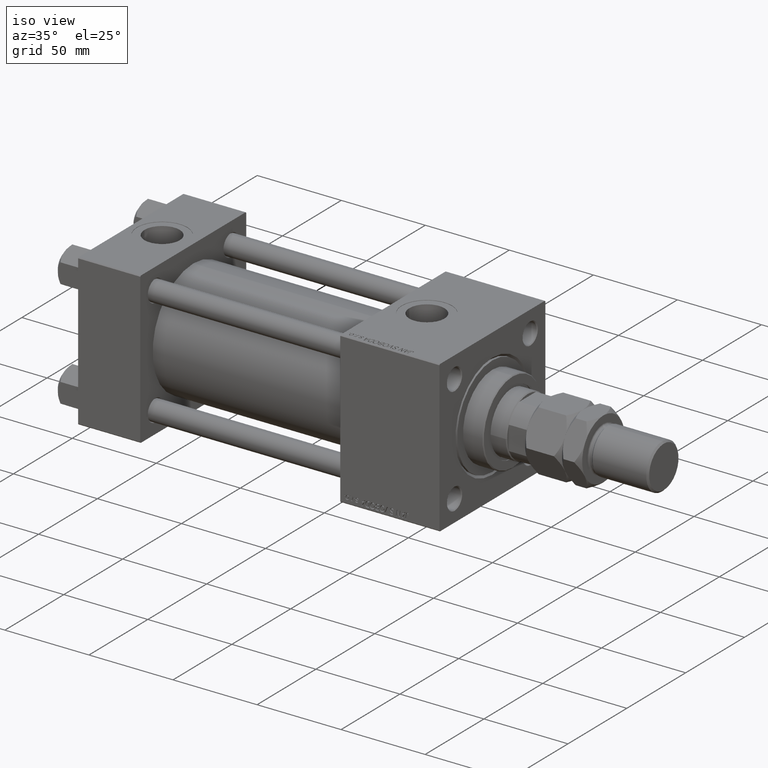
[diagram: clean part render]
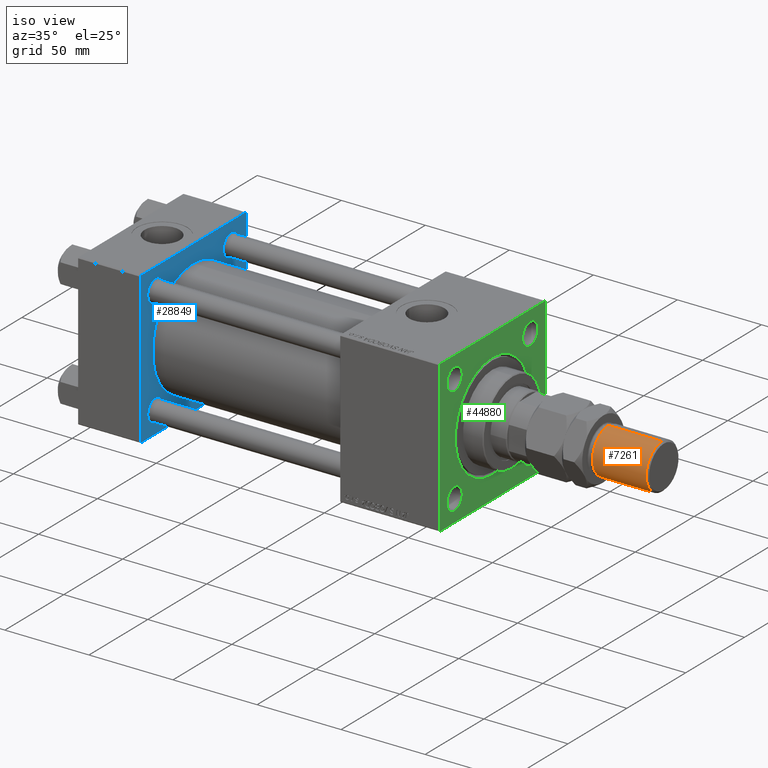
[diagram: same view with three faces highlighted in distinct colors, each labeled with its STEP entity id]
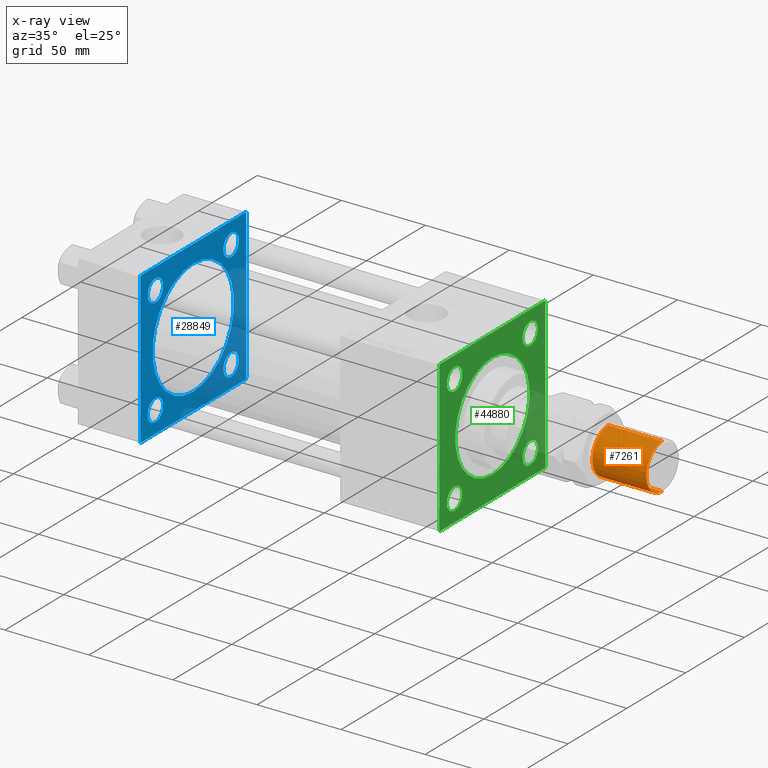
[diagram: x-ray of the same camera — body ghosted, the three highlighted faces saturated]
A machine part, iso view with three faces highlighted in distinct colors.
The next image is the same camera in x-ray (body ghosted, the three faces saturated) — at least one of them is partly hidden behind the body in this view.
Their STEP definitions:

[orange] entity #7261 — the highlighted cylindrical surface (edge-blend (fillet) strip) has radius 13.5 mm, axis along (-1, -0, 0).
#354 = ORIENTED_EDGE ( 'NONE', *, *, #14044, .T. ) ;
#2210 = CARTESIAN_POINT ( 'NONE',  ( -13.50000000000000000, 0.000000000000000000, 68.99999999999998579 ) ) ;
#4861 = ORIENTED_EDGE ( 'NONE', *, *, #17176, .T. ) ;
#5391 = VERTEX_POINT ( 'NONE', #46056 ) ;
#5723 = CARTESIAN_POINT ( 'NONE',  ( 13.50000000000000000, 1.653273178848926867E-15, 37.00000000000000000 ) ) ;
#7261 = ADVANCED_FACE ( 'NONE', ( #17191 ), #12234, .T. ) ;
#10795 = EDGE_LOOP ( 'NONE', ( #24001, #354, #4861, #20586 ) ) ;
#11623 = DIRECTION ( 'NONE',  ( -0.000000000000000000, -0.000000000000000000, 1.000000000000000000 ) ) ;
#12234 = CYLINDRICAL_SURFACE ( 'NONE', #17086, 13.50000000000000000 ) ;
#12435 = VERTEX_POINT ( 'NONE', #2210 ) ;
#13047 = CIRCLE ( 'NONE', #25605, 13.50000000000000000 ) ;
#14044 = EDGE_CURVE ( 'NONE', #5391, #12435, #13047, .T. ) ;
#16439 = CARTESIAN_POINT ( 'NONE',  ( -13.50000000000000000, 0.000000000000000000, 37.00000000000000000 ) ) ;
#17086 = AXIS2_PLACEMENT_3D ( 'NONE', #48667, #28246, #29028 ) ;
#17176 = EDGE_CURVE ( 'NONE', #12435, #17532, #21735, .T. ) ;
#17191 = FACE_OUTER_BOUND ( 'NONE', #10795, .T. ) ;
#17435 = DIRECTION ( 'NONE',  ( 0.000000000000000000, 0.000000000000000000, -1.000000000000000000 ) ) ;
#17532 = VERTEX_POINT ( 'NONE', #16439 ) ;
#20586 = ORIENTED_EDGE ( 'NONE', *, *, #25773, .T. ) ;
#20658 = VECTOR ( 'NONE', #34076, 1000.000000000000000 ) ;
#21735 = LINE ( 'NONE', #22261, #20658 ) ;
#22261 = CARTESIAN_POINT ( 'NONE',  ( -13.50000000000000000, 0.000000000000000000, 70.00000000000000000 ) ) ;
#22586 = VERTEX_POINT ( 'NONE', #5723 ) ;
#23694 = DIRECTION ( 'NONE',  ( -0.000000000000000000, -0.000000000000000000, -1.000000000000000000 ) ) ;
#23957 = LINE ( 'NONE', #51486, #30111 ) ;
#24001 = ORIENTED_EDGE ( 'NONE', *, *, #43259, .F. ) ;
#25425 = AXIS2_PLACEMENT_3D ( 'NONE', #36751, #11623, #48766 ) ;
#25605 = AXIS2_PLACEMENT_3D ( 'NONE', #29508, #17435, #37407 ) ;
#25773 = EDGE_CURVE ( 'NONE', #17532, #22586, #48012, .T. ) ;
#28246 = DIRECTION ( 'NONE',  ( -0.000000000000000000, -0.000000000000000000, -1.000000000000000000 ) ) ;
#29028 = DIRECTION ( 'NONE',  ( -1.000000000000000000, 0.000000000000000000, 0.000000000000000000 ) ) ;
#29508 = CARTESIAN_POINT ( 'NONE',  ( 0.000000000000000000, 0.000000000000000000, 68.99999999999998579 ) ) ;
#30111 = VECTOR ( 'NONE', #23694, 1000.000000000000000 ) ;
#34076 = DIRECTION ( 'NONE',  ( -0.000000000000000000, -0.000000000000000000, -1.000000000000000000 ) ) ;
#36751 = CARTESIAN_POINT ( 'NONE',  ( 0.000000000000000000, 0.000000000000000000, 37.00000000000000000 ) ) ;
#37407 = DIRECTION ( 'NONE',  ( 1.000000000000000000, 0.000000000000000000, 0.000000000000000000 ) ) ;
#43259 = EDGE_CURVE ( 'NONE', #5391, #22586, #23957, .T. ) ;
#46056 = CARTESIAN_POINT ( 'NONE',  ( 13.50000000000000000, 1.653273178848926867E-15, 68.99999999999998579 ) ) ;
#48012 = CIRCLE ( 'NONE', #25425, 13.50000000000000000 ) ;
#48667 = CARTESIAN_POINT ( 'NONE',  ( 0.000000000000000000, 0.000000000000000000, 70.00000000000000000 ) ) ;
#48766 = DIRECTION ( 'NONE',  ( 1.000000000000000000, 0.000000000000000000, 0.000000000000000000 ) ) ;
#51486 = CARTESIAN_POINT ( 'NONE',  ( 13.50000000000000000, 1.653273178848926867E-15, 70.00000000000000000 ) ) ;

[blue] entity #28849 — the highlighted planar face has unit normal (-1, 0, 0).
#675 = LINE ( 'NONE', #25331, #10606 ) ;
#876 = CARTESIAN_POINT ( 'NONE',  ( 37.00000000000000000, -32.14999999999997726, 32.15000000000001279 ) ) ;
#923 = DIRECTION ( 'NONE',  ( 0.000000000000000000, 0.000000000000000000, 1.000000000000000000 ) ) ;
#1118 = CARTESIAN_POINT ( 'NONE',  ( 37.00000000000000000, 44.99999999999998579, 45.00000000000001421 ) ) ;
#1129 = DIRECTION ( 'NONE',  ( 0.000000000000000000, 0.000000000000000000, 1.000000000000000000 ) ) ;
#1289 = ORIENTED_EDGE ( 'NONE', *, *, #51625, .T. ) ;
#1571 = EDGE_CURVE ( 'NONE', #32721, #4335, #3022, .T. ) ;
#1924 = DIRECTION ( 'NONE',  ( 0.000000000000000000, 0.000000000000000000, 1.000000000000000000 ) ) ;
#1953 = CARTESIAN_POINT ( 'NONE',  ( 37.00000000000000000, 44.99999999999998579, -44.99999999999998579 ) ) ;
#2116 = EDGE_CURVE ( 'NONE', #20625, #44077, #11850, .T. ) ;
#2742 = DIRECTION ( 'NONE',  ( -1.000000000000000000, 0.000000000000000000, -0.000000000000000000 ) ) ;
#3022 = LINE ( 'NONE', #34805, #3508 ) ;
#3041 = ORIENTED_EDGE ( 'NONE', *, *, #32937, .T. ) ;
#3312 = FACE_BOUND ( 'NONE', #16120, .T. ) ;
#3504 = EDGE_CURVE ( 'NONE', #7650, #7562, #21144, .T. ) ;
#3508 = VECTOR ( 'NONE', #50760, 1000.000000000000000 ) ;
#3544 = CARTESIAN_POINT ( 'NONE',  ( 37.00000000000000000, -44.49999999999995737, 45.00000000000000000 ) ) ;
#4335 = VERTEX_POINT ( 'NONE', #25866 ) ;
#4540 = VERTEX_POINT ( 'NONE', #13512 ) ;
#4720 = CIRCLE ( 'NONE', #17313, 6.499999999999977796 ) ;
#5167 = VERTEX_POINT ( 'NONE', #36146 ) ;
#5220 = CIRCLE ( 'NONE', #29540, 6.500000000000005329 ) ;
#5328 = CIRCLE ( 'NONE', #24596, 34.50000000000000000 ) ;
#5520 = ORIENTED_EDGE ( 'NONE', *, *, #2116, .T. ) ;
#5551 = CIRCLE ( 'NONE', #45744, 6.500000000000005329 ) ;
#5617 = DIRECTION ( 'NONE',  ( -1.000000000000000000, 0.000000000000000000, -0.000000000000000000 ) ) ;
#6525 = EDGE_CURVE ( 'NONE', #10137, #13244, #5328, .T. ) ;
#6773 = EDGE_LOOP ( 'NONE', ( #24314, #27672 ) ) ;
#7562 = VERTEX_POINT ( 'NONE', #21422 ) ;
#7650 = VERTEX_POINT ( 'NONE', #14590 ) ;
#7657 = VERTEX_POINT ( 'NONE', #3544 ) ;
#7753 = FACE_OUTER_BOUND ( 'NONE', #41736, .T. ) ;
#7927 = LINE ( 'NONE', #28136, #30107 ) ;
#8184 = DIRECTION ( 'NONE',  ( 0.000000000000000000, -1.000000000000000000, -1.541976423090495387E-16 ) ) ;
#8190 = EDGE_CURVE ( 'NONE', #13244, #10137, #38930, .T. ) ;
#8288 = VECTOR ( 'NONE', #50427, 1000.000000000000114 ) ;
#9131 = ORIENTED_EDGE ( 'NONE', *, *, #38384, .F. ) ;
#9486 = EDGE_LOOP ( 'NONE', ( #15942, #5520 ) ) ;
#9800 = VERTEX_POINT ( 'NONE', #18545 ) ;
#10137 = VERTEX_POINT ( 'NONE', #33239 ) ;
#10166 = LINE ( 'NONE', #43215, #42437 ) ;
#10606 = VECTOR ( 'NONE', #43193, 1000.000000000000114 ) ;
#11329 = VERTEX_POINT ( 'NONE', #13474 ) ;
#11850 = CIRCLE ( 'NONE', #23629, 6.499999999999977796 ) ;
#12255 = CARTESIAN_POINT ( 'NONE',  ( 37.00000000000000000, 44.99999999999998579, -44.49999999999995737 ) ) ;
#12462 = FACE_BOUND ( 'NONE', #37642, .T. ) ;
#13244 = VERTEX_POINT ( 'NONE', #41774 ) ;
#13474 = CARTESIAN_POINT ( 'NONE',  ( 37.00000000000000000, 44.99999999999998579, 44.50000000000001421 ) ) ;
#13512 = CARTESIAN_POINT ( 'NONE',  ( 37.00000000000000000, -32.14999999999997726, -38.65000000000001990 ) ) ;
#13799 = AXIS2_PLACEMENT_3D ( 'NONE', #876, #48860, #1129 ) ;
#14030 = DIRECTION ( 'NONE',  ( 0.000000000000000000, -1.000000000000000000, -1.541976423090495633E-16 ) ) ;
#14574 = CARTESIAN_POINT ( 'NONE',  ( 37.00000000000000000, 32.14999999999999147, 32.15000000000000568 ) ) ;
#14590 = CARTESIAN_POINT ( 'NONE',  ( 37.00000000000000000, 32.14999999999999147, -25.65000000000002700 ) ) ;
#14839 = DIRECTION ( 'NONE',  ( 0.000000000000000000, 0.000000000000000000, 1.000000000000000000 ) ) ;
#15097 = EDGE_CURVE ( 'NONE', #43301, #4540, #5551, .T. ) ;
#15715 = ORIENTED_EDGE ( 'NONE', *, *, #15097, .T. ) ;
#15942 = ORIENTED_EDGE ( 'NONE', *, *, #50758, .T. ) ;
#16080 = CARTESIAN_POINT ( 'NONE',  ( 37.00000000000000000, -32.14999999999997726, -25.65000000000000568 ) ) ;
#16120 = EDGE_LOOP ( 'NONE', ( #46108, #30857 ) ) ;
#16529 = EDGE_CURVE ( 'NONE', #7562, #7650, #4720, .T. ) ;
#17313 = AXIS2_PLACEMENT_3D ( 'NONE', #35298, #26655, #47322 ) ;
#18209 = DIRECTION ( 'NONE',  ( 1.000000000000000000, -0.000000000000000000, 0.000000000000000000 ) ) ;
#18386 = VERTEX_POINT ( 'NONE', #12255 ) ;
#18545 = CARTESIAN_POINT ( 'NONE',  ( 37.00000000000000000, 44.49999999999998579, -44.99999999999998579 ) ) ;
#19243 = DIRECTION ( 'NONE',  ( -1.000000000000000000, 0.000000000000000000, -0.000000000000000000 ) ) ;
#19439 = CARTESIAN_POINT ( 'NONE',  ( 37.00000000000000000, -32.14999999999997726, 38.65000000000001990 ) ) ;
#20057 = ORIENTED_EDGE ( 'NONE', *, *, #35651, .T. ) ;
#20089 = DIRECTION ( 'NONE',  ( -0.000000000000000000, 0.000000000000000000, 1.000000000000000000 ) ) ;
#20339 = CARTESIAN_POINT ( 'NONE',  ( 37.00000000000000000, 0.000000000000000000, 0.000000000000000000 ) ) ;
#20625 = VERTEX_POINT ( 'NONE', #21774 ) ;
#21144 = CIRCLE ( 'NONE', #34590, 6.499999999999977796 ) ;
#21333 = AXIS2_PLACEMENT_3D ( 'NONE', #20339, #28485, #20089 ) ;
#21422 = CARTESIAN_POINT ( 'NONE',  ( 37.00000000000000000, 32.14999999999999147, -38.64999999999998437 ) ) ;
#21638 = DIRECTION ( 'NONE',  ( 0.000000000000000000, 0.000000000000000000, 1.000000000000000000 ) ) ;
#21774 = CARTESIAN_POINT ( 'NONE',  ( 37.00000000000000000, 32.14999999999999147, 38.64999999999998437 ) ) ;
#22159 = EDGE_CURVE ( 'NONE', #4335, #28118, #27111, .T. ) ;
#22524 = CARTESIAN_POINT ( 'NONE',  ( 37.00000000000000000, 32.14999999999999147, 32.15000000000000568 ) ) ;
#23394 = CIRCLE ( 'NONE', #40998, 6.500000000000005329 ) ;
#23629 = AXIS2_PLACEMENT_3D ( 'NONE', #22524, #38545, #34878 ) ;
#23907 = ORIENTED_EDGE ( 'NONE', *, *, #51701, .F. ) ;
#24314 = ORIENTED_EDGE ( 'NONE', *, *, #6525, .F. ) ;
#24596 = AXIS2_PLACEMENT_3D ( 'NONE', #37894, #18209, #1924 ) ;
#25331 = CARTESIAN_POINT ( 'NONE',  ( 37.00000000000000000, 44.99999999999998579, -44.49999999999998579 ) ) ;
#25866 = CARTESIAN_POINT ( 'NONE',  ( 37.00000000000000000, -45.00000000000000000, -44.49999999999995737 ) ) ;
#26055 = AXIS2_PLACEMENT_3D ( 'NONE', #14574, #31623, #14839 ) ;
#26439 = EDGE_CURVE ( 'NONE', #7657, #32721, #43703, .T. ) ;
#26655 = DIRECTION ( 'NONE',  ( -1.000000000000000000, 0.000000000000000000, -0.000000000000000000 ) ) ;
#26701 = CARTESIAN_POINT ( 'NONE',  ( 37.00000000000000000, -45.00000000000000711, 44.49999999999997158 ) ) ;
#27111 = LINE ( 'NONE', #42848, #8288 ) ;
#27129 = CARTESIAN_POINT ( 'NONE',  ( 37.00000000000000000, 32.14999999999999147, -32.15000000000000568 ) ) ;
#27672 = ORIENTED_EDGE ( 'NONE', *, *, #8190, .F. ) ;
#27714 = FACE_BOUND ( 'NONE', #9486, .T. ) ;
#28118 = VERTEX_POINT ( 'NONE', #40223 ) ;
#28136 = CARTESIAN_POINT ( 'NONE',  ( 37.00000000000000000, 44.99999999999998579, 45.00000000000001421 ) ) ;
#28485 = DIRECTION ( 'NONE',  ( -1.000000000000000000, 0.000000000000000000, -0.000000000000000000 ) ) ;
#28688 = ORIENTED_EDGE ( 'NONE', *, *, #26439, .T. ) ;
#28849 = ADVANCED_FACE ( 'NONE', ( #32427, #3312, #12462, #27714, #48392, #7753 ), #44218, .F. ) ;
#28885 = CARTESIAN_POINT ( 'NONE',  ( 37.00000000000000000, 32.14999999999999147, 25.65000000000002700 ) ) ;
#29540 = AXIS2_PLACEMENT_3D ( 'NONE', #40561, #36895, #923 ) ;
#30107 = VECTOR ( 'NONE', #8184, 1000.000000000000000 ) ;
#30582 = AXIS2_PLACEMENT_3D ( 'NONE', #50642, #50380, #42546 ) ;
#30857 = ORIENTED_EDGE ( 'NONE', *, *, #3504, .T. ) ;
#31623 = DIRECTION ( 'NONE',  ( -1.000000000000000000, 0.000000000000000000, -0.000000000000000000 ) ) ;
#32427 = FACE_BOUND ( 'NONE', #37821, .T. ) ;
#32721 = VERTEX_POINT ( 'NONE', #47330 ) ;
#32937 = EDGE_CURVE ( 'NONE', #33476, #5167, #45666, .T. ) ;
#33149 = DIRECTION ( 'NONE',  ( 0.000000000000000000, 0.000000000000000000, -1.000000000000000000 ) ) ;
#33239 = CARTESIAN_POINT ( 'NONE',  ( 37.00000000000000711, -2.602085213965210642E-15, 34.50000000000000000 ) ) ;
#33476 = VERTEX_POINT ( 'NONE', #19439 ) ;
#33748 = VECTOR ( 'NONE', #14030, 1000.000000000000000 ) ;
#34061 = DIRECTION ( 'NONE',  ( 0.000000000000000000, -0.7071067811865474617, 0.7071067811865474617 ) ) ;
#34590 = AXIS2_PLACEMENT_3D ( 'NONE', #27129, #19243, #35267 ) ;
#34805 = CARTESIAN_POINT ( 'NONE',  ( 37.00000000000000000, -45.00000000000000711, 45.00000000000000000 ) ) ;
#34878 = DIRECTION ( 'NONE',  ( 0.000000000000000000, 0.000000000000000000, 1.000000000000000000 ) ) ;
#35094 = DIRECTION ( 'NONE',  ( -0.000000000000000000, -0.7071067811865425767, -0.7071067811865524577 ) ) ;
#35267 = DIRECTION ( 'NONE',  ( 0.000000000000000000, 0.000000000000000000, 1.000000000000000000 ) ) ;
#35298 = CARTESIAN_POINT ( 'NONE',  ( 37.00000000000000000, 32.14999999999999147, -32.15000000000000568 ) ) ;
#35651 = EDGE_CURVE ( 'NONE', #11329, #37487, #10166, .T. ) ;
#35867 = EDGE_CURVE ( 'NONE', #9800, #18386, #675, .T. ) ;
#36146 = CARTESIAN_POINT ( 'NONE',  ( 37.00000000000000000, -32.14999999999997726, 25.65000000000000568 ) ) ;
#36870 = ORIENTED_EDGE ( 'NONE', *, *, #1571, .T. ) ;
#36895 = DIRECTION ( 'NONE',  ( -1.000000000000000000, 0.000000000000000000, -0.000000000000000000 ) ) ;
#37487 = VERTEX_POINT ( 'NONE', #42764 ) ;
#37495 = ORIENTED_EDGE ( 'NONE', *, *, #22159, .T. ) ;
#37642 = EDGE_LOOP ( 'NONE', ( #42189, #3041 ) ) ;
#37821 = EDGE_LOOP ( 'NONE', ( #1289, #15715 ) ) ;
#37894 = CARTESIAN_POINT ( 'NONE',  ( 37.00000000000000711, -2.602085213965210642E-15, 0.000000000000000000 ) ) ;
#38384 = EDGE_CURVE ( 'NONE', #11329, #18386, #49374, .T. ) ;
#38545 = DIRECTION ( 'NONE',  ( -1.000000000000000000, 0.000000000000000000, -0.000000000000000000 ) ) ;
#38620 = CIRCLE ( 'NONE', #26055, 6.499999999999977796 ) ;
#38711 = CARTESIAN_POINT ( 'NONE',  ( 37.00000000000000000, -32.14999999999997726, -32.15000000000001279 ) ) ;
#38930 = CIRCLE ( 'NONE', #30582, 34.50000000000000000 ) ;
#40223 = CARTESIAN_POINT ( 'NONE',  ( 37.00000000000000000, -44.49999999999995737, -45.00000000000000000 ) ) ;
#40561 = CARTESIAN_POINT ( 'NONE',  ( 37.00000000000000000, -32.14999999999997726, -32.15000000000001279 ) ) ;
#40815 = VECTOR ( 'NONE', #33149, 1000.000000000000000 ) ;
#40998 = AXIS2_PLACEMENT_3D ( 'NONE', #41577, #5617, #21638 ) ;
#41577 = CARTESIAN_POINT ( 'NONE',  ( 37.00000000000000000, -32.14999999999997726, 32.15000000000001279 ) ) ;
#41736 = EDGE_LOOP ( 'NONE', ( #23907, #42131, #9131, #20057, #51453, #28688, #36870, #37495 ) ) ;
#41774 = CARTESIAN_POINT ( 'NONE',  ( 37.00000000000000711, 1.622946243093158675E-15, -34.50000000000000000 ) ) ;
#42131 = ORIENTED_EDGE ( 'NONE', *, *, #35867, .T. ) ;
#42189 = ORIENTED_EDGE ( 'NONE', *, *, #43134, .T. ) ;
#42437 = VECTOR ( 'NONE', #34061, 1000.000000000000114 ) ;
#42546 = DIRECTION ( 'NONE',  ( 0.000000000000000000, 0.000000000000000000, 1.000000000000000000 ) ) ;
#42764 = CARTESIAN_POINT ( 'NONE',  ( 37.00000000000000000, 44.49999999999998579, 45.00000000000001421 ) ) ;
#42848 = CARTESIAN_POINT ( 'NONE',  ( 37.00000000000000000, -44.49999999999998579, -45.00000000000000000 ) ) ;
#42891 = DIRECTION ( 'NONE',  ( 0.000000000000000000, 0.000000000000000000, 1.000000000000000000 ) ) ;
#43134 = EDGE_CURVE ( 'NONE', #5167, #33476, #23394, .T. ) ;
#43193 = DIRECTION ( 'NONE',  ( -0.000000000000000000, 0.7071067811865474617, 0.7071067811865474617 ) ) ;
#43215 = CARTESIAN_POINT ( 'NONE',  ( 37.00000000000000000, 44.49999999999998579, 45.00000000000001421 ) ) ;
#43301 = VERTEX_POINT ( 'NONE', #16080 ) ;
#43703 = LINE ( 'NONE', #26701, #51383 ) ;
#44077 = VERTEX_POINT ( 'NONE', #28885 ) ;
#44218 = PLANE ( 'NONE',  #21333 ) ;
#45666 = CIRCLE ( 'NONE', #13799, 6.500000000000005329 ) ;
#45744 = AXIS2_PLACEMENT_3D ( 'NONE', #38711, #2742, #42891 ) ;
#45991 = EDGE_CURVE ( 'NONE', #37487, #7657, #7927, .T. ) ;
#46108 = ORIENTED_EDGE ( 'NONE', *, *, #16529, .T. ) ;
#47322 = DIRECTION ( 'NONE',  ( 0.000000000000000000, 0.000000000000000000, 1.000000000000000000 ) ) ;
#47330 = CARTESIAN_POINT ( 'NONE',  ( 37.00000000000000000, -45.00000000000000711, 44.49999999999997158 ) ) ;
#48392 = FACE_BOUND ( 'NONE', #6773, .T. ) ;
#48860 = DIRECTION ( 'NONE',  ( -1.000000000000000000, 0.000000000000000000, -0.000000000000000000 ) ) ;
#49175 = LINE ( 'NONE', #1953, #33748 ) ;
#49374 = LINE ( 'NONE', #1118, #40815 ) ;
#50380 = DIRECTION ( 'NONE',  ( 1.000000000000000000, -0.000000000000000000, 0.000000000000000000 ) ) ;
#50427 = DIRECTION ( 'NONE',  ( 0.000000000000000000, 0.7071067811865474617, -0.7071067811865474617 ) ) ;
#50642 = CARTESIAN_POINT ( 'NONE',  ( 37.00000000000000711, -2.602085213965210642E-15, 0.000000000000000000 ) ) ;
#50758 = EDGE_CURVE ( 'NONE', #44077, #20625, #38620, .T. ) ;
#50760 = DIRECTION ( 'NONE',  ( 0.000000000000000000, 7.709882115452476934E-17, -1.000000000000000000 ) ) ;
#51383 = VECTOR ( 'NONE', #35094, 1000.000000000000114 ) ;
#51453 = ORIENTED_EDGE ( 'NONE', *, *, #45991, .T. ) ;
#51625 = EDGE_CURVE ( 'NONE', #4540, #43301, #5220, .T. ) ;
#51701 = EDGE_CURVE ( 'NONE', #9800, #28118, #49175, .T. ) ;

[green] entity #44880 — the highlighted planar face has unit normal (-1, 0, 0).
#170 = DIRECTION ( 'NONE',  ( 0.000000000000000000, -1.000000000000000000, -1.541976423090495140E-16 ) ) ;
#520 = ORIENTED_EDGE ( 'NONE', *, *, #33791, .T. ) ;
#1169 = DIRECTION ( 'NONE',  ( -0.000000000000000000, 0.7071067811865474617, 0.7071067811865474617 ) ) ;
#1199 = DIRECTION ( 'NONE',  ( 0.000000000000000000, -0.7071067811865474617, 0.7071067811865474617 ) ) ;
#1404 = VERTEX_POINT ( 'NONE', #40691 ) ;
#1730 = DIRECTION ( 'NONE',  ( 0.000000000000000000, 0.000000000000000000, -1.000000000000000000 ) ) ;
#1773 = EDGE_CURVE ( 'NONE', #22582, #42021, #5320, .T. ) ;
#2244 = CARTESIAN_POINT ( 'NONE',  ( 215.0000000000000000, 0.000000000000000000, 0.000000000000000000 ) ) ;
#2429 = CARTESIAN_POINT ( 'NONE',  ( 215.0000000000000000, 32.14999999999999147, -32.15000000000000568 ) ) ;
#2446 = EDGE_CURVE ( 'NONE', #41410, #42021, #38480, .T. ) ;
#3023 = FACE_BOUND ( 'NONE', #51148, .T. ) ;
#3119 = EDGE_CURVE ( 'NONE', #11203, #28134, #15274, .T. ) ;
#3287 = CARTESIAN_POINT ( 'NONE',  ( 215.0000000000000000, 45.00000000000001421, -45.00000000000000000 ) ) ;
#3687 = VECTOR ( 'NONE', #170, 1000.000000000000000 ) ;
#4242 = EDGE_LOOP ( 'NONE', ( #32319, #17405 ) ) ;
#4420 = DIRECTION ( 'NONE',  ( 0.000000000000000000, 0.000000000000000000, 1.000000000000000000 ) ) ;
#4792 = CIRCLE ( 'NONE', #49212, 31.49999999999997158 ) ;
#4906 = AXIS2_PLACEMENT_3D ( 'NONE', #21027, #37572, #24969 ) ;
#5320 = LINE ( 'NONE', #5585, #26987 ) ;
#5585 = CARTESIAN_POINT ( 'NONE',  ( 215.0000000000000000, -44.49999999999998579, -45.00000000000000000 ) ) ;
#6096 = EDGE_LOOP ( 'NONE', ( #44109, #15986, #20700, #520, #22044, #51382, #22001, #10778 ) ) ;
#6339 = EDGE_CURVE ( 'NONE', #49893, #8294, #40518, .T. ) ;
#6442 = FACE_BOUND ( 'NONE', #11369, .T. ) ;
#6493 = CARTESIAN_POINT ( 'NONE',  ( 215.0000000000000000, -32.15000000000001279, -32.15000000000000568 ) ) ;
#6660 = ORIENTED_EDGE ( 'NONE', *, *, #47432, .T. ) ;
#6931 = CIRCLE ( 'NONE', #42956, 6.499999999999977796 ) ;
#7138 = EDGE_CURVE ( 'NONE', #18711, #26033, #21131, .T. ) ;
#8263 = CARTESIAN_POINT ( 'NONE',  ( 215.0000000000000000, -32.14999999999999147, 25.65000000000001279 ) ) ;
#8294 = VERTEX_POINT ( 'NONE', #35452 ) ;
#8890 = CARTESIAN_POINT ( 'NONE',  ( 215.0000000000000000, -32.15000000000001279, -32.15000000000000568 ) ) ;
#9848 = ORIENTED_EDGE ( 'NONE', *, *, #25929, .T. ) ;
#9899 = ORIENTED_EDGE ( 'NONE', *, *, #35600, .T. ) ;
#10778 = ORIENTED_EDGE ( 'NONE', *, *, #43897, .T. ) ;
#11203 = VERTEX_POINT ( 'NONE', #8263 ) ;
#11369 = EDGE_LOOP ( 'NONE', ( #9848, #11916 ) ) ;
#11405 = FACE_BOUND ( 'NONE', #4242, .T. ) ;
#11916 = ORIENTED_EDGE ( 'NONE', *, *, #6339, .T. ) ;
#11968 = CARTESIAN_POINT ( 'NONE',  ( 215.0000000000000000, -45.00000000000000000, 44.50000000000001421 ) ) ;
#11996 = CARTESIAN_POINT ( 'NONE',  ( 215.0000000000000000, -44.49999999999995737, -45.00000000000000000 ) ) ;
#13012 = CARTESIAN_POINT ( 'NONE',  ( 215.0000000000000000, 44.50000000000001421, 45.00000000000000000 ) ) ;
#13180 = DIRECTION ( 'NONE',  ( -1.000000000000000000, -0.000000000000000000, -0.000000000000000000 ) ) ;
#14848 = DIRECTION ( 'NONE',  ( 0.000000000000000000, -1.000000000000000000, 0.000000000000000000 ) ) ;
#15108 = DIRECTION ( 'NONE',  ( -1.000000000000000000, -0.000000000000000000, -0.000000000000000000 ) ) ;
#15228 = DIRECTION ( 'NONE',  ( -1.000000000000000000, -0.000000000000000000, -0.000000000000000000 ) ) ;
#15270 = EDGE_CURVE ( 'NONE', #42950, #26066, #29844, .T. ) ;
#15274 = CIRCLE ( 'NONE', #28679, 6.499999999999977796 ) ;
#15986 = ORIENTED_EDGE ( 'NONE', *, *, #1773, .T. ) ;
#16039 = VERTEX_POINT ( 'NONE', #11968 ) ;
#16810 = AXIS2_PLACEMENT_3D ( 'NONE', #48608, #43663, #32388 ) ;
#17012 = CARTESIAN_POINT ( 'NONE',  ( 215.0000000000000000, -44.99999999999999289, -44.49999999999997158 ) ) ;
#17314 = VECTOR ( 'NONE', #50664, 1000.000000000000000 ) ;
#17405 = ORIENTED_EDGE ( 'NONE', *, *, #23003, .T. ) ;
#17536 = EDGE_CURVE ( 'NONE', #1404, #18711, #20893, .T. ) ;
#17537 = CIRCLE ( 'NONE', #51051, 6.499999999999977796 ) ;
#17563 = DIRECTION ( 'NONE',  ( -1.000000000000000000, -0.000000000000000000, -0.000000000000000000 ) ) ;
#17902 = DIRECTION ( 'NONE',  ( 0.000000000000000000, 0.000000000000000000, 1.000000000000000000 ) ) ;
#17928 = AXIS2_PLACEMENT_3D ( 'NONE', #33845, #17563, #34639 ) ;
#18684 = EDGE_CURVE ( 'NONE', #1404, #25029, #26681, .T. ) ;
#18711 = VERTEX_POINT ( 'NONE', #20805 ) ;
#18944 = EDGE_CURVE ( 'NONE', #33749, #41952, #4792, .T. ) ;
#19036 = DIRECTION ( 'NONE',  ( -0.000000000000000000, 0.000000000000000000, 1.000000000000000000 ) ) ;
#19283 = FACE_BOUND ( 'NONE', #39167, .T. ) ;
#19459 = VECTOR ( 'NONE', #14848, 1000.000000000000000 ) ;
#19790 = EDGE_LOOP ( 'NONE', ( #23666, #40309 ) ) ;
#20321 = CARTESIAN_POINT ( 'NONE',  ( 215.0000000000000000, 32.14999999999999147, 32.15000000000000568 ) ) ;
#20700 = ORIENTED_EDGE ( 'NONE', *, *, #2446, .F. ) ;
#20805 = CARTESIAN_POINT ( 'NONE',  ( 215.0000000000000000, 44.50000000000001421, 45.00000000000000000 ) ) ;
#20893 = LINE ( 'NONE', #13012, #50871 ) ;
#21027 = CARTESIAN_POINT ( 'NONE',  ( 215.0000000000000000, 32.14999999999999147, -32.15000000000000568 ) ) ;
#21131 = LINE ( 'NONE', #44743, #3687 ) ;
#21604 = DIRECTION ( 'NONE',  ( 0.000000000000000000, 0.7071067811865525687, -0.7071067811865425767 ) ) ;
#22001 = ORIENTED_EDGE ( 'NONE', *, *, #7138, .T. ) ;
#22044 = ORIENTED_EDGE ( 'NONE', *, *, #18684, .F. ) ;
#22164 = CARTESIAN_POINT ( 'NONE',  ( 215.0000000000000000, 0.000000000000000000, -31.49999999999997158 ) ) ;
#22582 = VERTEX_POINT ( 'NONE', #17012 ) ;
#23003 = EDGE_CURVE ( 'NONE', #28134, #11203, #6931, .T. ) ;
#23364 = CARTESIAN_POINT ( 'NONE',  ( 215.0000000000000000, -32.14999999999999147, 32.14999999999999147 ) ) ;
#23666 = ORIENTED_EDGE ( 'NONE', *, *, #15270, .T. ) ;
#23767 = AXIS2_PLACEMENT_3D ( 'NONE', #20321, #36350, #40794 ) ;
#24969 = DIRECTION ( 'NONE',  ( 0.000000000000000000, 0.000000000000000000, 1.000000000000000000 ) ) ;
#25029 = VERTEX_POINT ( 'NONE', #48256 ) ;
#25693 = CARTESIAN_POINT ( 'NONE',  ( 215.0000000000000000, 3.857637417314158745E-15, 31.49999999999997158 ) ) ;
#25757 = VERTEX_POINT ( 'NONE', #29384 ) ;
#25929 = EDGE_CURVE ( 'NONE', #8294, #49893, #48872, .T. ) ;
#26033 = VERTEX_POINT ( 'NONE', #43004 ) ;
#26066 = VERTEX_POINT ( 'NONE', #43258 ) ;
#26300 = CARTESIAN_POINT ( 'NONE',  ( 215.0000000000000000, -45.00000000000000000, 44.99999999999998579 ) ) ;
#26678 = CARTESIAN_POINT ( 'NONE',  ( 215.0000000000000000, -32.14999999999999147, 32.14999999999999147 ) ) ;
#26681 = LINE ( 'NONE', #42674, #45030 ) ;
#26987 = VECTOR ( 'NONE', #21604, 999.9999999999998863 ) ;
#27176 = DIRECTION ( 'NONE',  ( -1.000000000000000000, 0.000000000000000000, -0.000000000000000000 ) ) ;
#28134 = VERTEX_POINT ( 'NONE', #46211 ) ;
#28679 = AXIS2_PLACEMENT_3D ( 'NONE', #23364, #15228, #32016 ) ;
#29019 = AXIS2_PLACEMENT_3D ( 'NONE', #2429, #13180, #17902 ) ;
#29384 = CARTESIAN_POINT ( 'NONE',  ( 215.0000000000000000, -32.15000000000001279, -25.65000000000002700 ) ) ;
#29526 = VERTEX_POINT ( 'NONE', #37207 ) ;
#29780 = CARTESIAN_POINT ( 'NONE',  ( 215.0000000000000000, 45.00000000000001421, -44.50000000000000000 ) ) ;
#29844 = CIRCLE ( 'NONE', #29019, 6.499999999999977796 ) ;
#30384 = DIRECTION ( 'NONE',  ( 0.000000000000000000, 0.000000000000000000, 1.000000000000000000 ) ) ;
#30654 = VECTOR ( 'NONE', #1169, 1000.000000000000114 ) ;
#31538 = CIRCLE ( 'NONE', #33212, 6.499999999999977796 ) ;
#32016 = DIRECTION ( 'NONE',  ( 0.000000000000000000, 0.000000000000000000, 1.000000000000000000 ) ) ;
#32319 = ORIENTED_EDGE ( 'NONE', *, *, #3119, .T. ) ;
#32388 = DIRECTION ( 'NONE',  ( 0.000000000000000000, 0.000000000000000000, 1.000000000000000000 ) ) ;
#33212 = AXIS2_PLACEMENT_3D ( 'NONE', #6493, #42706, #30384 ) ;
#33749 = VERTEX_POINT ( 'NONE', #22164 ) ;
#33791 = EDGE_CURVE ( 'NONE', #41410, #25029, #50209, .T. ) ;
#33845 = CARTESIAN_POINT ( 'NONE',  ( 215.0000000000000000, 32.14999999999999147, 32.15000000000000568 ) ) ;
#34147 = ORIENTED_EDGE ( 'NONE', *, *, #18944, .T. ) ;
#34639 = DIRECTION ( 'NONE',  ( 0.000000000000000000, 0.000000000000000000, 1.000000000000000000 ) ) ;
#35309 = PLANE ( 'NONE',  #40104 ) ;
#35452 = CARTESIAN_POINT ( 'NONE',  ( 215.0000000000000000, 32.14999999999999147, 25.65000000000003411 ) ) ;
#35600 = EDGE_CURVE ( 'NONE', #25757, #29526, #31538, .T. ) ;
#36106 = CIRCLE ( 'NONE', #16810, 31.49999999999997158 ) ;
#36108 = DIRECTION ( 'NONE',  ( 0.000000000000000000, 0.000000000000000000, 1.000000000000000000 ) ) ;
#36350 = DIRECTION ( 'NONE',  ( -1.000000000000000000, -0.000000000000000000, -0.000000000000000000 ) ) ;
#36360 = DIRECTION ( 'NONE',  ( -1.000000000000000000, -0.000000000000000000, -0.000000000000000000 ) ) ;
#36511 = EDGE_CURVE ( 'NONE', #16039, #22582, #49876, .T. ) ;
#37207 = CARTESIAN_POINT ( 'NONE',  ( 215.0000000000000000, -32.15000000000001279, -38.64999999999999147 ) ) ;
#37572 = DIRECTION ( 'NONE',  ( -1.000000000000000000, -0.000000000000000000, -0.000000000000000000 ) ) ;
#37636 = CIRCLE ( 'NONE', #4906, 6.499999999999977796 ) ;
#38210 = FACE_BOUND ( 'NONE', #19790, .T. ) ;
#38473 = FACE_OUTER_BOUND ( 'NONE', #6096, .T. ) ;
#38480 = LINE ( 'NONE', #3287, #19459 ) ;
#39167 = EDGE_LOOP ( 'NONE', ( #34147, #50394 ) ) ;
#40104 = AXIS2_PLACEMENT_3D ( 'NONE', #2244, #27176, #19036 ) ;
#40309 = ORIENTED_EDGE ( 'NONE', *, *, #46010, .T. ) ;
#40518 = CIRCLE ( 'NONE', #23767, 6.499999999999970690 ) ;
#40691 = CARTESIAN_POINT ( 'NONE',  ( 215.0000000000000000, 45.00000000000001421, 44.50000000000000000 ) ) ;
#40794 = DIRECTION ( 'NONE',  ( 0.000000000000000000, 0.000000000000000000, 1.000000000000000000 ) ) ;
#41062 = CARTESIAN_POINT ( 'NONE',  ( 215.0000000000000000, 0.000000000000000000, 0.000000000000000000 ) ) ;
#41410 = VERTEX_POINT ( 'NONE', #42859 ) ;
#41952 = VERTEX_POINT ( 'NONE', #25693 ) ;
#42021 = VERTEX_POINT ( 'NONE', #11996 ) ;
#42674 = CARTESIAN_POINT ( 'NONE',  ( 215.0000000000000000, 45.00000000000001421, 45.00000000000000000 ) ) ;
#42706 = DIRECTION ( 'NONE',  ( -1.000000000000000000, -0.000000000000000000, -0.000000000000000000 ) ) ;
#42859 = CARTESIAN_POINT ( 'NONE',  ( 215.0000000000000000, 44.50000000000001421, -45.00000000000000000 ) ) ;
#42950 = VERTEX_POINT ( 'NONE', #51046 ) ;
#42956 = AXIS2_PLACEMENT_3D ( 'NONE', #26678, #15108, #43429 ) ;
#43004 = CARTESIAN_POINT ( 'NONE',  ( 215.0000000000000000, -44.50000000000000000, 44.99999999999998579 ) ) ;
#43258 = CARTESIAN_POINT ( 'NONE',  ( 215.0000000000000000, 32.14999999999999147, -25.65000000000002700 ) ) ;
#43429 = DIRECTION ( 'NONE',  ( 0.000000000000000000, 0.000000000000000000, 1.000000000000000000 ) ) ;
#43535 = VECTOR ( 'NONE', #45451, 1000.000000000000114 ) ;
#43663 = DIRECTION ( 'NONE',  ( -1.000000000000000000, -0.000000000000000000, -0.000000000000000000 ) ) ;
#43897 = EDGE_CURVE ( 'NONE', #26033, #16039, #45979, .T. ) ;
#44109 = ORIENTED_EDGE ( 'NONE', *, *, #36511, .T. ) ;
#44743 = CARTESIAN_POINT ( 'NONE',  ( 215.0000000000000000, 45.00000000000001421, 45.00000000000000000 ) ) ;
#44822 = DIRECTION ( 'NONE',  ( -1.000000000000000000, -0.000000000000000000, -0.000000000000000000 ) ) ;
#44880 = ADVANCED_FACE ( 'NONE', ( #6442, #11405, #3023, #38210, #19283, #38473 ), #35309, .F. ) ;
#44998 = CARTESIAN_POINT ( 'NONE',  ( 215.0000000000000000, 32.14999999999999147, 38.64999999999997726 ) ) ;
#45030 = VECTOR ( 'NONE', #1730, 1000.000000000000000 ) ;
#45451 = DIRECTION ( 'NONE',  ( -0.000000000000000000, -0.7071067811865474617, -0.7071067811865474617 ) ) ;
#45979 = LINE ( 'NONE', #46496, #43535 ) ;
#46010 = EDGE_CURVE ( 'NONE', #26066, #42950, #37636, .T. ) ;
#46211 = CARTESIAN_POINT ( 'NONE',  ( 215.0000000000000000, -32.14999999999999147, 38.64999999999997016 ) ) ;
#46496 = CARTESIAN_POINT ( 'NONE',  ( 215.0000000000000000, -45.00000000000000000, 44.50000000000001421 ) ) ;
#47432 = EDGE_CURVE ( 'NONE', #29526, #25757, #17537, .T. ) ;
#48256 = CARTESIAN_POINT ( 'NONE',  ( 215.0000000000000000, 45.00000000000001421, -44.49999999999997158 ) ) ;
#48608 = CARTESIAN_POINT ( 'NONE',  ( 215.0000000000000000, 0.000000000000000000, 0.000000000000000000 ) ) ;
#48872 = CIRCLE ( 'NONE', #17928, 6.499999999999970690 ) ;
#49212 = AXIS2_PLACEMENT_3D ( 'NONE', #41062, #36360, #36108 ) ;
#49876 = LINE ( 'NONE', #26300, #17314 ) ;
#49893 = VERTEX_POINT ( 'NONE', #44998 ) ;
#50209 = LINE ( 'NONE', #29780, #30654 ) ;
#50394 = ORIENTED_EDGE ( 'NONE', *, *, #50860, .T. ) ;
#50664 = DIRECTION ( 'NONE',  ( 0.000000000000000000, 7.709882115452478166E-17, -1.000000000000000000 ) ) ;
#50860 = EDGE_CURVE ( 'NONE', #41952, #33749, #36106, .T. ) ;
#50871 = VECTOR ( 'NONE', #1199, 1000.000000000000114 ) ;
#51046 = CARTESIAN_POINT ( 'NONE',  ( 215.0000000000000000, 32.14999999999999147, -38.64999999999999147 ) ) ;
#51051 = AXIS2_PLACEMENT_3D ( 'NONE', #8890, #44822, #4420 ) ;
#51148 = EDGE_LOOP ( 'NONE', ( #6660, #9899 ) ) ;
#51382 = ORIENTED_EDGE ( 'NONE', *, *, #17536, .T. ) ;